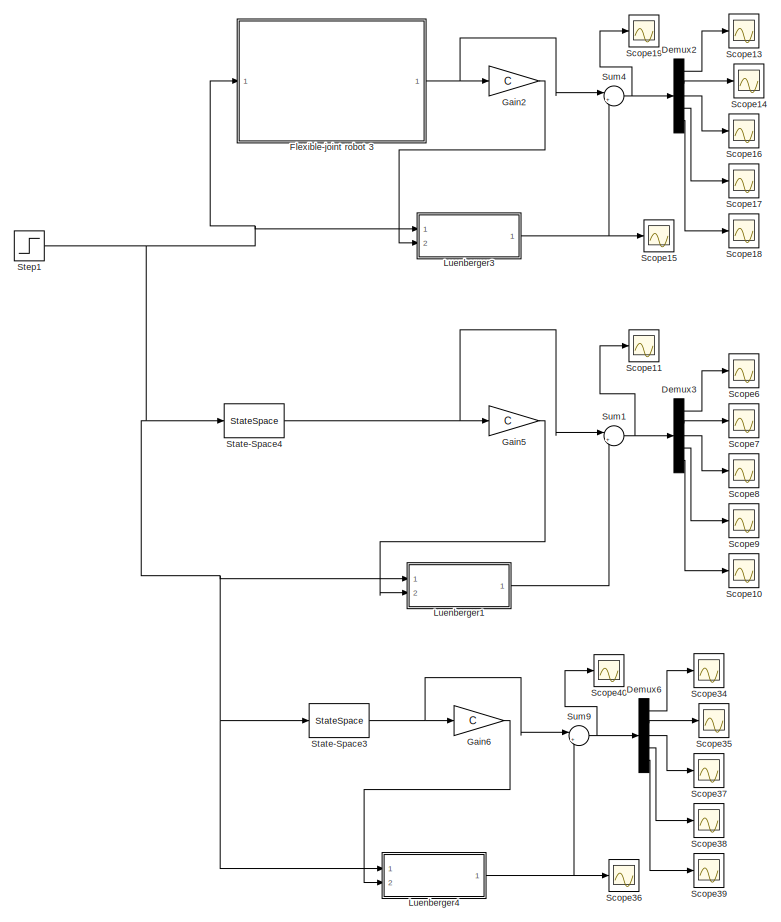
[diagram: root canvas - part 1/3, center side, full height]
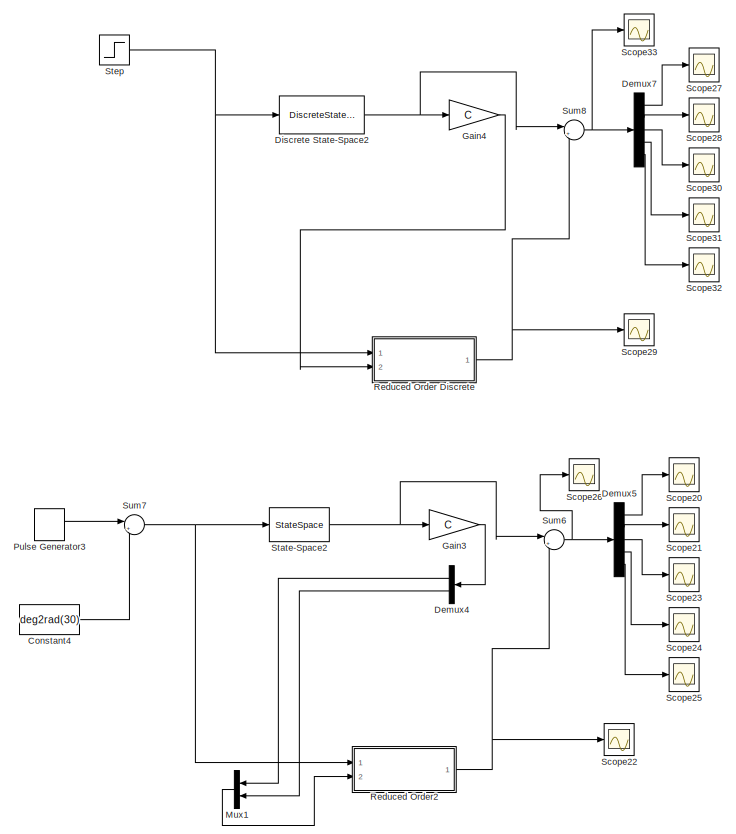
[diagram: root canvas - part 2/3, right side, full height]
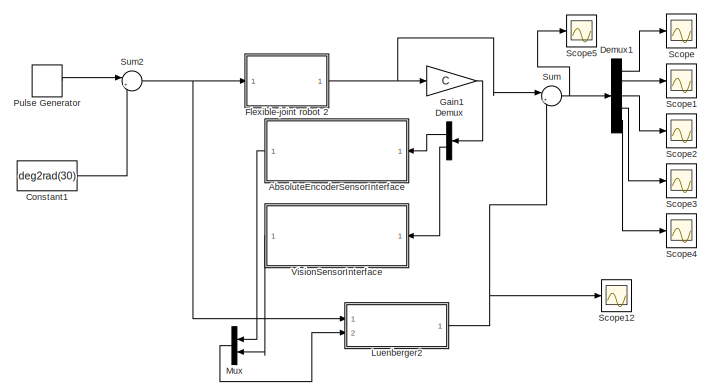
[diagram: root canvas - part 3/3, bottom left region]
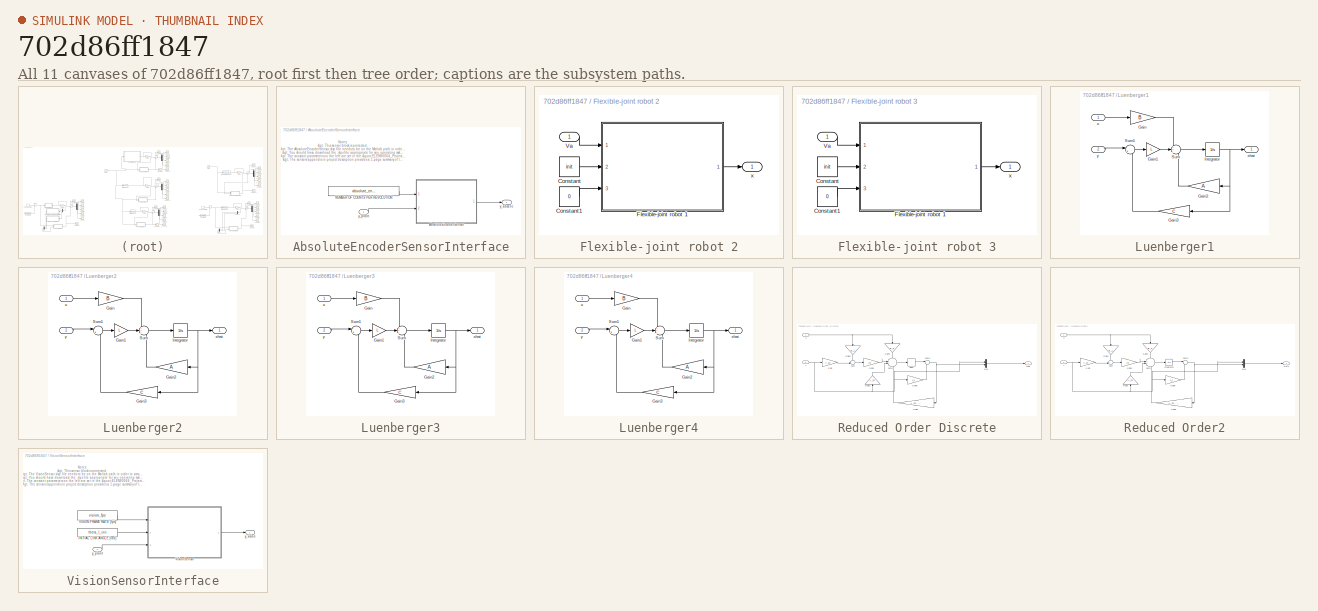
[diagram: thumbnail index - all 11 canvases of the model, root first then tree order]
MODEL slx_702d86ff1847
KIND model
CONFIG AbsTol = auto
CONFIG EnableMultiTasking = off
CONFIG FixedStep = auto
CONFIG MaxStep = auto
CONFIG MinStep = auto
CONFIG RelTol = 1e-3
CONFIG SampleTimeConstraint = Unconstrained
CONFIG SolverName = ode45
CONFIG StartTime = 0.0
CONFIG StopTime = 30
BLOCK [SubSystem] AbsoluteEncoderSensorInterface
  NameLocation = top
  Ports = [1, 1]
  RequestExecContextInheritance = off
  TreatAsAtomicUnit = on
BLOCK [ModelReference] AbsoluteEncoderSensorInterface/AbsoluteEncoderSensor
  CopyOfModelProtected = on
  ModelNameDialog = AbsoluteEncoderSensor.slxp
  ModelReferenceVersion = 1.16
  Ports = [2, 1]
BLOCK [Constant] AbsoluteEncoderSensorInterface/NUMBER OF COUNTS PER REVOLUTION
  Value = absolute_encoder_counts_per_revolution
BLOCK [Outport] AbsoluteEncoderSensorInterface/y_absenc
BLOCK [Inport] AbsoluteEncoderSensorInterface/y_plant
BLOCK [Constant] Constant1
  Value = deg2rad(30)
BLOCK [Constant] Constant4
  Value = deg2rad(30)
BLOCK [Demux] Demux
  NameLocation = top
  Outputs = 2
  Ports = [1, 2]
BLOCK [Demux] Demux1
  Outputs = 5
  Ports = [1, 5]
BLOCK [Demux] Demux2
  Outputs = 5
  Ports = [1, 5]
BLOCK [Demux] Demux3
  Outputs = 5
  Ports = [1, 5]
BLOCK [Demux] Demux4
  NameLocation = top
  Outputs = 2
  Ports = [1, 2]
BLOCK [Demux] Demux5
  Outputs = 5
  Ports = [1, 5]
BLOCK [Demux] Demux6
  Outputs = 5
  Ports = [1, 5]
BLOCK [Demux] Demux7
  Outputs = 5
  Ports = [1, 5]
BLOCK [DiscreteStateSpace] Discrete State-Space2
  A = Dp.a
  B = Dp.b
  C = Dp.c
  D = Dp.d
  SampleTime = T
BLOCK [SubSystem] Flexible-joint robot 2
  Ports = [1, 1]
  RequestExecContextInheritance = off
BLOCK [Constant] Flexible-joint robot 2/Constant
  Value = init
BLOCK [Constant] Flexible-joint robot 2/Constant1
  Value = 0
BLOCK [ModelReference] Flexible-joint robot 2/Flexible-joint robot 1
  CopyOfModelProtected = on
  ModelNameDialog = Flexible_joint_robot_1
  ModelReferenceVersion = 1.65
  Ports = [3, 1]
BLOCK [Inport] Flexible-joint robot 2/Va
BLOCK [Outport] Flexible-joint robot 2/x
BLOCK [SubSystem] Flexible-joint robot 3
  Ports = [1, 1]
  RequestExecContextInheritance = off
BLOCK [Constant] Flexible-joint robot 3/Constant
  Value = init
BLOCK [Constant] Flexible-joint robot 3/Constant1
  Value = 0
BLOCK [ModelReference] Flexible-joint robot 3/Flexible-joint robot 1
  CopyOfModelProtected = on
  ModelNameDialog = Flexible_joint_robot_1
  ModelReferenceVersion = 1.65
  Ports = [3, 1]
BLOCK [Inport] Flexible-joint robot 3/Va
BLOCK [Outport] Flexible-joint robot 3/x
BLOCK [Gain] Gain1
  Gain = C
  Multiplication = Matrix(K*u)
BLOCK [Gain] Gain2
  Gain = C
  Multiplication = Matrix(K*u)
BLOCK [Gain] Gain3
  Gain = C
  Multiplication = Matrix(K*u)
BLOCK [Gain] Gain4
  Gain = C
  Multiplication = Matrix(K*u)
BLOCK [Gain] Gain5
  Gain = C
  Multiplication = Matrix(K*u)
BLOCK [Gain] Gain6
  Gain = C
  Multiplication = Matrix(K*u)
BLOCK [SubSystem] Luenberger1
  NameLocation = top
  Ports = [2, 1]
  RequestExecContextInheritance = off
  TreatAsAtomicUnit = on
BLOCK [Gain] Luenberger1/Gain
  Gain = B
  Multiplication = Matrix(K*u) (u vector)
BLOCK [Gain] Luenberger1/Gain1
  Gain = L
  Multiplication = Matrix(K*u) (u vector)
BLOCK [Gain] Luenberger1/Gain2
  Gain = A
  Multiplication = Matrix(K*u) (u vector)
  NameLocation = top
BLOCK [Gain] Luenberger1/Gain3
  Gain = C
  Multiplication = Matrix(K*u) (u vector)
  NameLocation = top
BLOCK [Integrator] Luenberger1/Integrator
  Ports = [1, 1]
BLOCK [Sum] Luenberger1/Sum
  Inputs = +++
  Ports = [3, 1]
BLOCK [Sum] Luenberger1/Sum1
  Inputs = |+-
  Ports = [2, 1]
BLOCK [Inport] Luenberger1/u
BLOCK [Outport] Luenberger1/xhat
BLOCK [Inport] Luenberger1/y
  Port = 2
BLOCK [SubSystem] Luenberger2
  NameLocation = top
  Ports = [2, 1]
  RequestExecContextInheritance = off
  TreatAsAtomicUnit = on
BLOCK [Gain] Luenberger2/Gain
  Gain = B
  Multiplication = Matrix(K*u) (u vector)
BLOCK [Gain] Luenberger2/Gain1
  Gain = L
  Multiplication = Matrix(K*u) (u vector)
BLOCK [Gain] Luenberger2/Gain2
  Gain = A
  Multiplication = Matrix(K*u) (u vector)
  NameLocation = top
BLOCK [Gain] Luenberger2/Gain3
  Gain = C
  Multiplication = Matrix(K*u) (u vector)
  NameLocation = top
BLOCK [Integrator] Luenberger2/Integrator
  Ports = [1, 1]
BLOCK [Sum] Luenberger2/Sum
  Inputs = +++
  Ports = [3, 1]
BLOCK [Sum] Luenberger2/Sum1
  Inputs = |+-
  Ports = [2, 1]
BLOCK [Inport] Luenberger2/u
BLOCK [Outport] Luenberger2/xhat
BLOCK [Inport] Luenberger2/y
  Port = 2
BLOCK [SubSystem] Luenberger3
  NameLocation = top
  Ports = [2, 1]
  RequestExecContextInheritance = off
  TreatAsAtomicUnit = on
BLOCK [Gain] Luenberger3/Gain
  Gain = B
  Multiplication = Matrix(K*u) (u vector)
BLOCK [Gain] Luenberger3/Gain1
  Gain = L
  Multiplication = Matrix(K*u) (u vector)
BLOCK [Gain] Luenberger3/Gain2
  Gain = A
  Multiplication = Matrix(K*u) (u vector)
  NameLocation = top
BLOCK [Gain] Luenberger3/Gain3
  Gain = C
  Multiplication = Matrix(K*u) (u vector)
  NameLocation = top
BLOCK [Integrator] Luenberger3/Integrator
  Ports = [1, 1]
BLOCK [Sum] Luenberger3/Sum
  Inputs = +++
  Ports = [3, 1]
BLOCK [Sum] Luenberger3/Sum1
  Inputs = |+-
  Ports = [2, 1]
BLOCK [Inport] Luenberger3/u
BLOCK [Outport] Luenberger3/xhat
BLOCK [Inport] Luenberger3/y
  Port = 2
BLOCK [SubSystem] Luenberger4
  NameLocation = top
  Ports = [2, 1]
  RequestExecContextInheritance = off
  TreatAsAtomicUnit = on
BLOCK [Gain] Luenberger4/Gain
  Gain = B
  Multiplication = Matrix(K*u) (u vector)
BLOCK [Gain] Luenberger4/Gain1
  Gain = L
  Multiplication = Matrix(K*u) (u vector)
BLOCK [Gain] Luenberger4/Gain2
  Gain = A
  Multiplication = Matrix(K*u) (u vector)
  NameLocation = top
BLOCK [Gain] Luenberger4/Gain3
  Gain = C
  Multiplication = Matrix(K*u) (u vector)
  NameLocation = top
BLOCK [Integrator] Luenberger4/Integrator
  Ports = [1, 1]
BLOCK [Sum] Luenberger4/Sum
  Inputs = +++
  Ports = [3, 1]
BLOCK [Sum] Luenberger4/Sum1
  Inputs = |+-
  Ports = [2, 1]
BLOCK [Inport] Luenberger4/u
BLOCK [Outport] Luenberger4/xhat
BLOCK [Inport] Luenberger4/y
  Port = 2
BLOCK [Mux] Mux
  DisplayOption = bar
  Inputs = 2
  NameLocation = top
  Ports = [2, 1]
BLOCK [Mux] Mux1
  DisplayOption = bar
  Inputs = 2
  NameLocation = top
  Ports = [2, 1]
BLOCK [DiscretePulseGenerator] Pulse Generator
  Amplitude = deg2rad(30)
  Period = 10
  Ports = [0, 1]
  PulseType = Time based
  PulseWidth = 50
BLOCK [DiscretePulseGenerator] Pulse Generator3
  Amplitude = deg2rad(30)
  Period = 10
  Ports = [0, 1]
  PulseType = Time based
  PulseWidth = 50
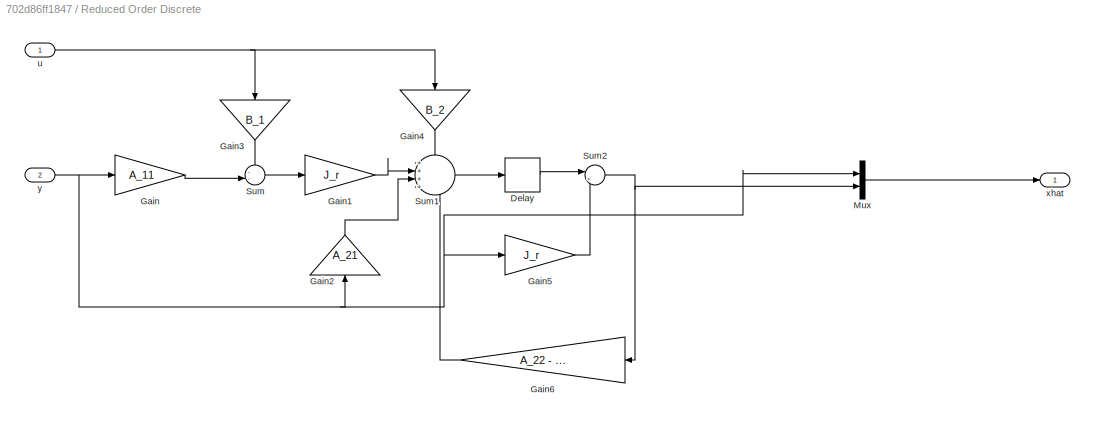
BLOCK [SubSystem] Reduced Order Discrete
  NameLocation = top
  Ports = [2, 1]
  RequestExecContextInheritance = off
  TreatAsAtomicUnit = on
BLOCK [Delay] Reduced Order Discrete/Delay
  InputPortMap = u0
  Ports = [1, 1]
BLOCK [Gain] Reduced Order Discrete/Gain
  Gain = A_11
  Multiplication = Matrix(K*u) (u vector)
BLOCK [Gain] Reduced Order Discrete/Gain1
  Gain = J_r
  Multiplication = Matrix(K*u) (u vector)
BLOCK [Gain] Reduced Order Discrete/Gain2
  Gain = A_21
  Multiplication = Matrix(K*u) (u vector)
  NameLocation = right
BLOCK [Gain] Reduced Order Discrete/Gain3
  Gain = B_1
  Multiplication = Matrix(K*u) (u vector)
  NameLocation = left
BLOCK [Gain] Reduced Order Discrete/Gain4
  Gain = B_2
  Multiplication = Matrix(K*u) (u vector)
  NameLocation = left
BLOCK [Gain] Reduced Order Discrete/Gain5
  Gain = J_r
  Multiplication = Matrix(K*u) (u vector)
BLOCK [Gain] Reduced Order Discrete/Gain6
  Gain = A_22 - J_r*A_12
  Multiplication = Matrix(K*u) (u vector)
  NameLocation = top
BLOCK [Mux] Reduced Order Discrete/Mux
  DisplayOption = bar
  Inputs = 2
  Ports = [2, 1]
BLOCK [Sum] Reduced Order Discrete/Sum
  Inputs = --|
  Ports = [2, 1]
BLOCK [Sum] Reduced Order Discrete/Sum1
  Inputs = ++++
  Ports = [4, 1]
BLOCK [Sum] Reduced Order Discrete/Sum2
  Inputs = |++
  Ports = [2, 1]
BLOCK [Inport] Reduced Order Discrete/u
BLOCK [Outport] Reduced Order Discrete/xhat
BLOCK [Inport] Reduced Order Discrete/y
  Port = 2
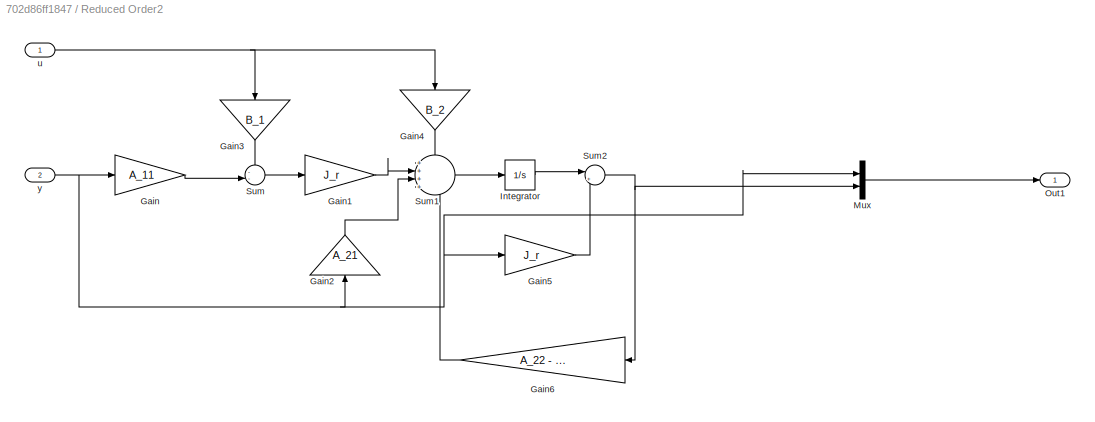
BLOCK [SubSystem] Reduced Order2
  NameLocation = top
  Ports = [2, 1]
  RequestExecContextInheritance = off
  TreatAsAtomicUnit = on
BLOCK [Gain] Reduced Order2/Gain
  Gain = A_11
  Multiplication = Matrix(K*u) (u vector)
BLOCK [Gain] Reduced Order2/Gain1
  Gain = J_r
  Multiplication = Matrix(K*u) (u vector)
BLOCK [Gain] Reduced Order2/Gain2
  Gain = A_21
  Multiplication = Matrix(K*u) (u vector)
  NameLocation = right
BLOCK [Gain] Reduced Order2/Gain3
  Gain = B_1
  Multiplication = Matrix(K*u) (u vector)
  NameLocation = left
BLOCK [Gain] Reduced Order2/Gain4
  Gain = B_2
  Multiplication = Matrix(K*u) (u vector)
  NameLocation = left
BLOCK [Gain] Reduced Order2/Gain5
  Gain = J_r
  Multiplication = Matrix(K*u) (u vector)
BLOCK [Gain] Reduced Order2/Gain6
  Gain = A_22 - J_r*A_12
  Multiplication = Matrix(K*u) (u vector)
  NameLocation = top
BLOCK [Integrator] Reduced Order2/Integrator
  Ports = [1, 1]
BLOCK [Mux] Reduced Order2/Mux
  DisplayOption = bar
  Inputs = 2
  Ports = [2, 1]
BLOCK [Outport] Reduced Order2/Out1
BLOCK [Sum] Reduced Order2/Sum
  Inputs = --|
  Ports = [2, 1]
BLOCK [Sum] Reduced Order2/Sum1
  Inputs = ++++
  Ports = [4, 1]
BLOCK [Sum] Reduced Order2/Sum2
  Inputs = |++
  Ports = [2, 1]
BLOCK [Inport] Reduced Order2/u
BLOCK [Inport] Reduced Order2/y
  Port = 2
BLOCK [Scope] Scope
  Floating = off
  NumInputPorts = 1
  Ports = [1]
  ScopeSpecificationString = Simulink.scopes.TimeScopeBlockCfg('CurrentConfiguration', extmgr.ConfigurationSet(extmgr.Configuration('Core','General UI',true),extmgr.Configuration('Core','Source UI',true),extmgr.Configuration('Sources','WiredSimulink',true),extmgr.Configuration('Visuals','Time Domain',true,'SerializedDisplays',{struct('MinYLimReal','-0.06143','MaxYLimReal','0.05922','YLabelReal','','MinYLimMag','0.00000','MaxY...<+1400ch>
BLOCK [Scope] Scope1
  Floating = off
  NumInputPorts = 1
  Ports = [1]
  ScopeSpecificationString = Simulink.scopes.TimeScopeBlockCfg('CurrentConfiguration', extmgr.ConfigurationSet(extmgr.Configuration('Core','General UI',true),extmgr.Configuration('Core','Source UI',true),extmgr.Configuration('Sources','WiredSimulink',true,'DataLoggingVariableName','ScopeData1'),extmgr.Configuration('Visuals','Time Domain',true,'SerializedDisplays',{struct('MinYLimReal','-183.88766','MaxYLimReal','148.14918','...<+1453ch>
BLOCK [Scope] Scope10
  Floating = off
  NumInputPorts = 1
  Ports = [1]
  ScopeSpecificationString = Simulink.scopes.TimeScopeBlockCfg('CurrentConfiguration', extmgr.ConfigurationSet(extmgr.Configuration('Core','General UI',true),extmgr.Configuration('Core','Source UI',true),extmgr.Configuration('Sources','WiredSimulink',true,'DataLoggingVariableName','ScopeData1'),extmgr.Configuration('Visuals','Time Domain',true,'SerializedDisplays',{struct('MinYLimReal','-0.00005','MaxYLimReal','0.00044','YLab...<+1439ch>
BLOCK [Scope] Scope11
  Floating = off
  NumInputPorts = 1
  Ports = [1]
  ScopeSpecificationString = Simulink.scopes.TimeScopeBlockCfg('CurrentConfiguration', extmgr.ConfigurationSet(extmgr.Configuration('Core','General UI',true),extmgr.Configuration('Core','Source UI',true),extmgr.Configuration('Sources','WiredSimulink',true,'DataLoggingVariableName','ScopeData8'),extmgr.Configuration('Visuals','Time Domain',true,'SerializedDisplays',{struct('MinYLimReal','-0.00954','MaxYLimReal','0.07203','YLab...<+1473ch>
BLOCK [Scope] Scope12
  Floating = off
  NumInputPorts = 1
  Ports = [1]
  ScopeSpecificationString = Simulink.scopes.TimeScopeBlockCfg('CurrentConfiguration', extmgr.ConfigurationSet(extmgr.Configuration('Core','General UI',true),extmgr.Configuration('Core','Source UI',true),extmgr.Configuration('Sources','WiredSimulink',true,'DataLoggingVariableName','ScopeData7'),extmgr.Configuration('Visuals','Time Domain',true,'SerializedDisplays',{struct('MinYLimReal','-618.01754','MaxYLimReal','595.91483','...<+1522ch>
BLOCK [Scope] Scope13
  Floating = off
  NumInputPorts = 1
  Ports = [1]
  ScopeSpecificationString = Simulink.scopes.TimeScopeBlockCfg('CurrentConfiguration', extmgr.ConfigurationSet(extmgr.Configuration('Core','General UI',true),extmgr.Configuration('Core','Source UI',true),extmgr.Configuration('Sources','WiredSimulink',true,'DataLoggingVariableName','ScopeData1'),extmgr.Configuration('Visuals','Time Domain',true,'SerializedDisplays',{struct('MinYLimReal','-1.00000','MaxYLimReal','1.00000','YLab...<+1439ch>
BLOCK [Scope] Scope14
  Floating = off
  NumInputPorts = 1
  Ports = [1]
  ScopeSpecificationString = Simulink.scopes.TimeScopeBlockCfg('CurrentConfiguration', extmgr.ConfigurationSet(extmgr.Configuration('Core','General UI',true),extmgr.Configuration('Core','Source UI',true),extmgr.Configuration('Sources','WiredSimulink',true,'DataLoggingVariableName','ScopeData2'),extmgr.Configuration('Visuals','Time Domain',true,'SerializedDisplays',{struct('MinYLimReal','-0.0000000000000023','MaxYLimReal','0.0...<+1527ch>
BLOCK [Scope] Scope15
  Floating = off
  NumInputPorts = 1
  Ports = [1]
  ScopeSpecificationString = Simulink.scopes.TimeScopeBlockCfg('CurrentConfiguration', extmgr.ConfigurationSet(extmgr.Configuration('Core','General UI',true),extmgr.Configuration('Core','Source UI',true),extmgr.Configuration('Sources','WiredSimulink',true,'DataLoggingVariableName','ScopeData3'),extmgr.Configuration('Visuals','Time Domain',true,'SerializedDisplays',{struct('MinYLimReal','-6.15621','MaxYLimReal','6.84793','YLab...<+1508ch>
BLOCK [Scope] Scope16
  Floating = off
  NumInputPorts = 1
  Ports = [1]
  ScopeSpecificationString = Simulink.scopes.TimeScopeBlockCfg('CurrentConfiguration', extmgr.ConfigurationSet(extmgr.Configuration('Core','General UI',true),extmgr.Configuration('Core','Source UI',true),extmgr.Configuration('Sources','WiredSimulink',true,'DataLoggingVariableName','ScopeData4'),extmgr.Configuration('Visuals','Time Domain',true,'SerializedDisplays',{struct('MinYLimReal','-1.00000','MaxYLimReal','1.00000','YLab...<+1439ch>
BLOCK [Scope] Scope17
  Floating = off
  NumInputPorts = 1
  Ports = [1]
  ScopeSpecificationString = Simulink.scopes.TimeScopeBlockCfg('CurrentConfiguration', extmgr.ConfigurationSet(extmgr.Configuration('Core','General UI',true),extmgr.Configuration('Core','Source UI',true),extmgr.Configuration('Sources','WiredSimulink',true,'DataLoggingVariableName','ScopeData5'),extmgr.Configuration('Visuals','Time Domain',true,'SerializedDisplays',{struct('MinYLimReal','-0.0000000000025','MaxYLimReal','0.0000...<+1503ch>
BLOCK [Scope] Scope18
  Floating = off
  NumInputPorts = 1
  Ports = [1]
  ScopeSpecificationString = Simulink.scopes.TimeScopeBlockCfg('CurrentConfiguration', extmgr.ConfigurationSet(extmgr.Configuration('Core','General UI',true),extmgr.Configuration('Core','Source UI',true),extmgr.Configuration('Sources','WiredSimulink',true,'DataLoggingVariableName','ScopeData6'),extmgr.Configuration('Visuals','Time Domain',true,'SerializedDisplays',{struct('MinYLimReal','-0.000000000000025','MaxYLimReal','0.00...<+1519ch>
BLOCK [Scope] Scope19
  Floating = off
  NumInputPorts = 1
  Ports = [1]
  ScopeSpecificationString = Simulink.scopes.TimeScopeBlockCfg('CurrentConfiguration', extmgr.ConfigurationSet(extmgr.Configuration('Core','General UI',true),extmgr.Configuration('Core','Source UI',true),extmgr.Configuration('Sources','WiredSimulink',true,'DataLoggingVariableName','ScopeData7'),extmgr.Configuration('Visuals','Time Domain',true,'SerializedDisplays',{struct('MinYLimReal','-1.00000','MaxYLimReal','1.00000','YLab...<+1474ch>
BLOCK [Scope] Scope2
  Floating = off
  NumInputPorts = 1
  Ports = [1]
  ScopeSpecificationString = Simulink.scopes.TimeScopeBlockCfg('CurrentConfiguration', extmgr.ConfigurationSet(extmgr.Configuration('Core','General UI',true),extmgr.Configuration('Core','Source UI',true),extmgr.Configuration('Sources','WiredSimulink',true,'DataLoggingVariableName','ScopeData2'),extmgr.Configuration('Visuals','Time Domain',true,'SerializedDisplays',{struct('MinYLimReal','-104.4737','MaxYLimReal','61.32964','YL...<+1447ch>
BLOCK [Scope] Scope20
  Floating = off
  NumInputPorts = 1
  Ports = [1]
  ScopeSpecificationString = Simulink.scopes.TimeScopeBlockCfg('CurrentConfiguration', extmgr.ConfigurationSet(extmgr.Configuration('Core','General UI',true),extmgr.Configuration('Core','Source UI',true),extmgr.Configuration('Sources','WiredSimulink',true,'DataLoggingVariableName','ScopeData1'),extmgr.Configuration('Visuals','Time Domain',true,'SerializedDisplays',{struct('MinYLimReal','-0.06143','MaxYLimReal','0.05922','YLab...<+1439ch>
BLOCK [Scope] Scope21
  Floating = off
  NumInputPorts = 1
  Ports = [1]
  ScopeSpecificationString = Simulink.scopes.TimeScopeBlockCfg('CurrentConfiguration', extmgr.ConfigurationSet(extmgr.Configuration('Core','General UI',true),extmgr.Configuration('Core','Source UI',true),extmgr.Configuration('Sources','WiredSimulink',true,'DataLoggingVariableName','ScopeData2'),extmgr.Configuration('Visuals','Time Domain',true,'SerializedDisplays',{struct('MinYLimReal','-183.88766','MaxYLimReal','148.14918','...<+1453ch>
BLOCK [Scope] Scope22
  Floating = off
  NumInputPorts = 1
  Ports = [1]
  ScopeSpecificationString = Simulink.scopes.TimeScopeBlockCfg('CurrentConfiguration', extmgr.ConfigurationSet(extmgr.Configuration('Core','General UI',true),extmgr.Configuration('Core','Source UI',true),extmgr.Configuration('Sources','WiredSimulink',true,'DataLoggingVariableName','ScopeData3'),extmgr.Configuration('Visuals','Time Domain',true,'SerializedDisplays',{struct('MinYLimReal','-97764.31171','MaxYLimReal','118351.636...<+1557ch>
BLOCK [Scope] Scope23
  Floating = off
  NumInputPorts = 1
  Ports = [1]
  ScopeSpecificationString = Simulink.scopes.TimeScopeBlockCfg('CurrentConfiguration', extmgr.ConfigurationSet(extmgr.Configuration('Core','General UI',true),extmgr.Configuration('Core','Source UI',true),extmgr.Configuration('Sources','WiredSimulink',true,'DataLoggingVariableName','ScopeData4'),extmgr.Configuration('Visuals','Time Domain',true,'SerializedDisplays',{struct('MinYLimReal','-70.30615','MaxYLimReal','41.35111','YL...<+1445ch>
BLOCK [Scope] Scope24
  Floating = off
  NumInputPorts = 1
  Ports = [1]
  ScopeSpecificationString = Simulink.scopes.TimeScopeBlockCfg('CurrentConfiguration', extmgr.ConfigurationSet(extmgr.Configuration('Core','General UI',true),extmgr.Configuration('Core','Source UI',true),extmgr.Configuration('Sources','WiredSimulink',true,'DataLoggingVariableName','ScopeData5'),extmgr.Configuration('Visuals','Time Domain',true,'SerializedDisplays',{struct('MinYLimReal','-181330.99853','MaxYLimReal','150408.49...<+1477ch>
BLOCK [Scope] Scope25
  Floating = off
  NumInputPorts = 1
  Ports = [1]
  ScopeSpecificationString = Simulink.scopes.TimeScopeBlockCfg('CurrentConfiguration', extmgr.ConfigurationSet(extmgr.Configuration('Core','General UI',true),extmgr.Configuration('Core','Source UI',true),extmgr.Configuration('Sources','WiredSimulink',true,'DataLoggingVariableName','ScopeData6'),extmgr.Configuration('Visuals','Time Domain',true,'SerializedDisplays',{struct('MinYLimReal','-1843.54498','MaxYLimReal','2239.72718'...<+1461ch>
BLOCK [Scope] Scope26
  Floating = off
  NumInputPorts = 1
  Ports = [1]
  ScopeSpecificationString = Simulink.scopes.TimeScopeBlockCfg('CurrentConfiguration', extmgr.ConfigurationSet(extmgr.Configuration('Core','General UI',true),extmgr.Configuration('Core','Source UI',true),extmgr.Configuration('Sources','WiredSimulink',true,'DataLoggingVariableName','ScopeData7'),extmgr.Configuration('Visuals','Time Domain',true,'SerializedDisplays',{struct('MinYLimReal','-0.0000000028','MaxYLimReal','0.0000000...<+1513ch>
BLOCK [Scope] Scope27
  Floating = off
  NumInputPorts = 1
  Ports = [1]
  ScopeSpecificationString = Simulink.scopes.TimeScopeBlockCfg('CurrentConfiguration', extmgr.ConfigurationSet(extmgr.Configuration('Core','General UI',true),extmgr.Configuration('Core','Source UI',true),extmgr.Configuration('Sources','WiredSimulink',true,'DataLoggingVariableName','ScopeData8'),extmgr.Configuration('Visuals','Time Domain',true,'SerializedDisplays',{struct('MinYLimReal','-1.00000','MaxYLimReal','1.00000','YLab...<+1442ch>
BLOCK [Scope] Scope28
  Floating = off
  NumInputPorts = 1
  Ports = [1]
  ScopeSpecificationString = Simulink.scopes.TimeScopeBlockCfg('CurrentConfiguration', extmgr.ConfigurationSet(extmgr.Configuration('Core','General UI',true),extmgr.Configuration('Core','Source UI',true),extmgr.Configuration('Sources','WiredSimulink',true,'DataLoggingVariableName','ScopeData9'),extmgr.Configuration('Visuals','Time Domain',true,'SerializedDisplays',{struct('MinYLimReal','-1.00000','MaxYLimReal','1.00000','YLab...<+1439ch>
BLOCK [Scope] Scope29
  Floating = off
  NumInputPorts = 1
  Ports = [1]
  ScopeSpecificationString = Simulink.scopes.TimeScopeBlockCfg('CurrentConfiguration', extmgr.ConfigurationSet(extmgr.Configuration('Core','General UI',true),extmgr.Configuration('Core','Source UI',true),extmgr.Configuration('Sources','WiredSimulink',true,'DataLoggingVariableName','ScopeData10'),extmgr.Configuration('Visuals','Time Domain',true,'SerializedDisplays',{struct('MinYLimReal','-97764.31171','MaxYLimReal','118351.63...<+1558ch>
BLOCK [Scope] Scope3
  Floating = off
  NumInputPorts = 1
  Ports = [1]
  ScopeSpecificationString = Simulink.scopes.TimeScopeBlockCfg('CurrentConfiguration', extmgr.ConfigurationSet(extmgr.Configuration('Core','General UI',true),extmgr.Configuration('Core','Source UI',true),extmgr.Configuration('Sources','WiredSimulink',true,'DataLoggingVariableName','ScopeData3'),extmgr.Configuration('Visuals','Time Domain',true,'SerializedDisplays',{struct('MinYLimReal','-2542.86051','MaxYLimReal','2543.02396'...<+1461ch>
BLOCK [Scope] Scope30
  Floating = off
  NumInputPorts = 1
  Ports = [1]
  ScopeSpecificationString = Simulink.scopes.TimeScopeBlockCfg('CurrentConfiguration', extmgr.ConfigurationSet(extmgr.Configuration('Core','General UI',true),extmgr.Configuration('Core','Source UI',true),extmgr.Configuration('Sources','WiredSimulink',true,'DataLoggingVariableName','ScopeData11'),extmgr.Configuration('Visuals','Time Domain',true,'SerializedDisplays',{struct('MinYLimReal','-0.94273','MaxYLimReal','0.10475','YLa...<+1440ch>
BLOCK [Scope] Scope31
  Floating = off
  NumInputPorts = 1
  Ports = [1]
  ScopeSpecificationString = Simulink.scopes.TimeScopeBlockCfg('CurrentConfiguration', extmgr.ConfigurationSet(extmgr.Configuration('Core','General UI',true),extmgr.Configuration('Core','Source UI',true),extmgr.Configuration('Sources','WiredSimulink',true,'DataLoggingVariableName','ScopeData12'),extmgr.Configuration('Visuals','Time Domain',true,'SerializedDisplays',{struct('MinYLimReal','-0.00681','MaxYLimReal','0.06131','YLa...<+1440ch>
BLOCK [Scope] Scope32
  Floating = off
  NumInputPorts = 1
  Ports = [1]
  ScopeSpecificationString = Simulink.scopes.TimeScopeBlockCfg('CurrentConfiguration', extmgr.ConfigurationSet(extmgr.Configuration('Core','General UI',true),extmgr.Configuration('Core','Source UI',true),extmgr.Configuration('Sources','WiredSimulink',true,'DataLoggingVariableName','ScopeData13'),extmgr.Configuration('Visuals','Time Domain',true,'SerializedDisplays',{struct('MinYLimReal','-0.23598','MaxYLimReal','0.02888','YLa...<+1440ch>
BLOCK [Scope] Scope33
  Floating = off
  NumInputPorts = 1
  Ports = [1]
  ScopeSpecificationString = Simulink.scopes.TimeScopeBlockCfg('CurrentConfiguration', extmgr.ConfigurationSet(extmgr.Configuration('Core','General UI',true),extmgr.Configuration('Core','Source UI',true),extmgr.Configuration('Sources','WiredSimulink',true,'DataLoggingVariableName','ScopeData14'),extmgr.Configuration('Visuals','Time Domain',true,'SerializedDisplays',{struct('MinYLimReal','-0.94693','MaxYLimReal','0.16452','YLa...<+1477ch>
BLOCK [Scope] Scope34
  Floating = off
  NumInputPorts = 1
  Ports = [1]
  ScopeSpecificationString = Simulink.scopes.TimeScopeBlockCfg('CurrentConfiguration', extmgr.ConfigurationSet(extmgr.Configuration('Core','General UI',true),extmgr.Configuration('Core','Source UI',true),extmgr.Configuration('Sources','WiredSimulink',true,'DataLoggingVariableName','ScopeData1'),extmgr.Configuration('Visuals','Time Domain',true,'SerializedDisplays',{struct('MinYLimReal','-1.00000','MaxYLimReal','1.00000','YLab...<+1439ch>
BLOCK [Scope] Scope35
  Floating = off
  NumInputPorts = 1
  Ports = [1]
  ScopeSpecificationString = Simulink.scopes.TimeScopeBlockCfg('CurrentConfiguration', extmgr.ConfigurationSet(extmgr.Configuration('Core','General UI',true),extmgr.Configuration('Core','Source UI',true),extmgr.Configuration('Sources','WiredSimulink',true,'DataLoggingVariableName','ScopeData2'),extmgr.Configuration('Visuals','Time Domain',true,'SerializedDisplays',{struct('MinYLimReal','-0.0000000000000023','MaxYLimReal','0.0...<+1527ch>
BLOCK [Scope] Scope36
  Floating = off
  NumInputPorts = 1
  Ports = [1]
  ScopeSpecificationString = Simulink.scopes.TimeScopeBlockCfg('CurrentConfiguration', extmgr.ConfigurationSet(extmgr.Configuration('Core','General UI',true),extmgr.Configuration('Core','Source UI',true),extmgr.Configuration('Sources','WiredSimulink',true,'DataLoggingVariableName','ScopeData3'),extmgr.Configuration('Visuals','Time Domain',true,'SerializedDisplays',{struct('MinYLimReal','-6.15621','MaxYLimReal','6.84793','YLab...<+1508ch>
BLOCK [Scope] Scope37
  Floating = off
  NumInputPorts = 1
  Ports = [1]
  ScopeSpecificationString = Simulink.scopes.TimeScopeBlockCfg('CurrentConfiguration', extmgr.ConfigurationSet(extmgr.Configuration('Core','General UI',true),extmgr.Configuration('Core','Source UI',true),extmgr.Configuration('Sources','WiredSimulink',true,'DataLoggingVariableName','ScopeData4'),extmgr.Configuration('Visuals','Time Domain',true,'SerializedDisplays',{struct('MinYLimReal','-1.00000','MaxYLimReal','1.00000','YLab...<+1439ch>
BLOCK [Scope] Scope38
  Floating = off
  NumInputPorts = 1
  Ports = [1]
  ScopeSpecificationString = Simulink.scopes.TimeScopeBlockCfg('CurrentConfiguration', extmgr.ConfigurationSet(extmgr.Configuration('Core','General UI',true),extmgr.Configuration('Core','Source UI',true),extmgr.Configuration('Sources','WiredSimulink',true,'DataLoggingVariableName','ScopeData5'),extmgr.Configuration('Visuals','Time Domain',true,'SerializedDisplays',{struct('MinYLimReal','-0.0000000000025','MaxYLimReal','0.0000...<+1503ch>
BLOCK [Scope] Scope39
  Floating = off
  NumInputPorts = 1
  Ports = [1]
  ScopeSpecificationString = Simulink.scopes.TimeScopeBlockCfg('CurrentConfiguration', extmgr.ConfigurationSet(extmgr.Configuration('Core','General UI',true),extmgr.Configuration('Core','Source UI',true),extmgr.Configuration('Sources','WiredSimulink',true,'DataLoggingVariableName','ScopeData6'),extmgr.Configuration('Visuals','Time Domain',true,'SerializedDisplays',{struct('MinYLimReal','-0.000000000000025','MaxYLimReal','0.00...<+1519ch>
BLOCK [Scope] Scope4
  Floating = off
  NumInputPorts = 1
  Ports = [1]
  ScopeSpecificationString = Simulink.scopes.TimeScopeBlockCfg('CurrentConfiguration', extmgr.ConfigurationSet(extmgr.Configuration('Core','General UI',true),extmgr.Configuration('Core','Source UI',true),extmgr.Configuration('Sources','WiredSimulink',true,'DataLoggingVariableName','ScopeData4'),extmgr.Configuration('Visuals','Time Domain',true,'SerializedDisplays',{struct('MinYLimReal','-30.89237','MaxYLimReal','30.88978','YL...<+1446ch>
BLOCK [Scope] Scope40
  Floating = off
  NumInputPorts = 1
  Ports = [1]
  ScopeSpecificationString = Simulink.scopes.TimeScopeBlockCfg('CurrentConfiguration', extmgr.ConfigurationSet(extmgr.Configuration('Core','General UI',true),extmgr.Configuration('Core','Source UI',true),extmgr.Configuration('Sources','WiredSimulink',true,'DataLoggingVariableName','ScopeData7'),extmgr.Configuration('Visuals','Time Domain',true,'SerializedDisplays',{struct('MinYLimReal','-1.00000','MaxYLimReal','1.00000','YLab...<+1477ch>
BLOCK [Scope] Scope5
  Floating = off
  NumInputPorts = 1
  Ports = [1]
  ScopeSpecificationString = Simulink.scopes.TimeScopeBlockCfg('CurrentConfiguration', extmgr.ConfigurationSet(extmgr.Configuration('Core','General UI',true),extmgr.Configuration('Core','Source UI',true),extmgr.Configuration('Sources','WiredSimulink',true,'DataLoggingVariableName','ScopeData1'),extmgr.Configuration('Visuals','Time Domain',true,'SerializedDisplays',{struct('MinYLimReal','-390.42156','MaxYLimReal','224.8222','Y...<+1480ch>
BLOCK [Scope] Scope6
  Floating = off
  NumInputPorts = 1
  Ports = [1]
  ScopeSpecificationString = Simulink.scopes.TimeScopeBlockCfg('CurrentConfiguration', extmgr.ConfigurationSet(extmgr.Configuration('Core','General UI',true),extmgr.Configuration('Core','Source UI',true),extmgr.Configuration('Sources','WiredSimulink',true,'DataLoggingVariableName','ScopeData3'),extmgr.Configuration('Visuals','Time Domain',true,'SerializedDisplays',{struct('MinYLimReal','-0.37386','MaxYLimReal','2.57346','YLab...<+1439ch>
BLOCK [Scope] Scope7
  Floating = off
  NumInputPorts = 1
  Ports = [1]
  ScopeSpecificationString = Simulink.scopes.TimeScopeBlockCfg('CurrentConfiguration', extmgr.ConfigurationSet(extmgr.Configuration('Core','General UI',true),extmgr.Configuration('Core','Source UI',true),extmgr.Configuration('Sources','WiredSimulink',true,'DataLoggingVariableName','ScopeData4'),extmgr.Configuration('Visuals','Time Domain',true,'SerializedDisplays',{struct('MinYLimReal','-0.032','MaxYLimReal','0.06496','YLabel...<+1438ch>
BLOCK [Scope] Scope8
  Floating = off
  NumInputPorts = 1
  Ports = [1]
  ScopeSpecificationString = Simulink.scopes.TimeScopeBlockCfg('CurrentConfiguration', extmgr.ConfigurationSet(extmgr.Configuration('Core','General UI',true),extmgr.Configuration('Core','Source UI',true),extmgr.Configuration('Sources','WiredSimulink',true,'DataLoggingVariableName','ScopeData5'),extmgr.Configuration('Visuals','Time Domain',true,'SerializedDisplays',{struct('MinYLimReal','-4.92886','MaxYLimReal','43.39107','YLa...<+1443ch>
BLOCK [Scope] Scope9
  Floating = off
  NumInputPorts = 1
  Ports = [1]
  ScopeSpecificationString = Simulink.scopes.TimeScopeBlockCfg('CurrentConfiguration', extmgr.ConfigurationSet(extmgr.Configuration('Core','General UI',true),extmgr.Configuration('Core','Source UI',true),extmgr.Configuration('Sources','WiredSimulink',true,'DataLoggingVariableName','ScopeData6'),extmgr.Configuration('Visuals','Time Domain',true,'SerializedDisplays',{struct('MinYLimReal','-0.01203','MaxYLimReal','0.0964','YLabe...<+1435ch>
BLOCK [StateSpace] State-Space2
  A = A
  B = B
  C = eye(5)
  D = zeros(5,1)
  InitialCondition = 0
  Ports = [1, 1]
BLOCK [StateSpace] State-Space3
  A = A
  B = B
  C = eye(5)
  D = zeros(5,1)
  InitialCondition = 0
  Ports = [1, 1]
BLOCK [StateSpace] State-Space4
  A = A
  B = B
  C = eye(5)
  D = zeros(5,1)
  InitialCondition = 0
  Ports = [1, 1]
BLOCK [Step] Step
  SampleTime = 0
  Time = deg2rad(60)
BLOCK [Step] Step1
  SampleTime = 0
  Time = deg2rad(60)
BLOCK [Sum] Sum
  Inputs = |+-
  Ports = [2, 1]
BLOCK [Sum] Sum1
  Inputs = |+-
  Ports = [2, 1]
BLOCK [Sum] Sum2
  Inputs = |++
  Ports = [2, 1]
BLOCK [Sum] Sum4
  Inputs = |+-
  Ports = [2, 1]
BLOCK [Sum] Sum6
  Inputs = |+-
  Ports = [2, 1]
BLOCK [Sum] Sum7
  Inputs = |++
  Ports = [2, 1]
BLOCK [Sum] Sum8
  Inputs = |+-
  Ports = [2, 1]
BLOCK [Sum] Sum9
  Inputs = |+-
  Ports = [2, 1]
BLOCK [SubSystem] VisionSensorInterface
  NameLocation = top
  Ports = [1, 1]
  RequestExecContextInheritance = off
  TreatAsAtomicUnit = on
BLOCK [Constant] VisionSensorInterface/INITIAL LINK ANGLE [rad]
  Value = theta_l_init
BLOCK [Constant] VisionSensorInterface/VISION FRAME RATE [fps]
  Value = vision_fps
BLOCK [ModelReference] VisionSensorInterface/VisionSensor
  CopyOfModelProtected = on
  ModelNameDialog = VisionSensor.slxp
  ModelReferenceVersion = 1.19
  Ports = [3, 1]
BLOCK [Inport] VisionSensorInterface/y_plant
BLOCK [Outport] VisionSensorInterface/y_vision
ANNOTATION AbsoluteEncoderSensorInterface: Notes: > This sensor block is protected. > The AbsoluteEncoderSensor.slxp file needs to be on the Matlab path in order to simulate this sensor. > You should have download the .slpx file appropriate for you operating system {Windows, Mac, Linux}. > The constant parameters on the left are set in the " ELEN90064_Project_Parameters.m " script. > The sensors appendix in project description provides a 1...<+190ch>
ANNOTATION VisionSensorInterface: Notes: > This sensor block is protected. > The VisionSensor.slxp file needs to be on the Matlab path in order to simulate this sensor. > You should have download the .slpx file appropriate for you operating system {Windows, Mac, Linux}. > The constant parameters on the left are set in the "ELEN90064_Project_Parameters.m" script. > The sensors appendix in project description provides a 1-page summa...<+179ch>
LINE AbsoluteEncoderSensorInterface/AbsoluteEncoderSensor:1 -> AbsoluteEncoderSensorInterface/y_absenc:1
LINE AbsoluteEncoderSensorInterface/NUMBER OF COUNTS PER REVOLUTION:1 -> AbsoluteEncoderSensorInterface/AbsoluteEncoderSensor:1
LINE AbsoluteEncoderSensorInterface/y_plant:1 -> AbsoluteEncoderSensorInterface/AbsoluteEncoderSensor:2
LINE AbsoluteEncoderSensorInterface:1 -> Mux:1
LINE Constant1:1 -> Sum2:2
LINE Constant4:1 -> Sum7:2
LINE Demux1:1 -> Scope:1
LINE Demux1:2 -> Scope1:1
LINE Demux1:3 -> Scope2:1
LINE Demux1:4 -> Scope3:1
LINE Demux1:5 -> Scope4:1
LINE Demux2:1 -> Scope13:1
LINE Demux2:2 -> Scope14:1
LINE Demux2:3 -> Scope16:1
LINE Demux2:4 -> Scope17:1
LINE Demux2:5 -> Scope18:1
LINE Demux3:1 -> Scope6:1
LINE Demux3:2 -> Scope7:1
LINE Demux3:3 -> Scope8:1
LINE Demux3:4 -> Scope9:1
LINE Demux3:5 -> Scope10:1
LINE Demux4:1 -> Mux1:1
LINE Demux4:2 -> Mux1:2
LINE Demux5:1 -> Scope20:1
LINE Demux5:2 -> Scope21:1
LINE Demux5:3 -> Scope23:1
LINE Demux5:4 -> Scope24:1
LINE Demux5:5 -> Scope25:1
LINE Demux6:1 -> Scope34:1
LINE Demux6:2 -> Scope35:1
LINE Demux6:3 -> Scope37:1
LINE Demux6:4 -> Scope38:1
LINE Demux6:5 -> Scope39:1
LINE Demux7:1 -> Scope27:1
LINE Demux7:2 -> Scope28:1
LINE Demux7:3 -> Scope30:1
LINE Demux7:4 -> Scope31:1
LINE Demux7:5 -> Scope32:1
LINE Demux:1 -> AbsoluteEncoderSensorInterface:1
LINE Demux:2 -> VisionSensorInterface:1
NET Discrete State-Space2:1 -> Gain4:1, Sum8:1
LINE Flexible-joint robot 2/Constant1:1 -> Flexible-joint robot 2/Flexible-joint robot 1:3
LINE Flexible-joint robot 2/Constant:1 -> Flexible-joint robot 2/Flexible-joint robot 1:2
LINE Flexible-joint robot 2/Flexible-joint robot 1:1 -> Flexible-joint robot 2/x:1
LINE Flexible-joint robot 2/Va:1 -> Flexible-joint robot 2/Flexible-joint robot 1:1
NET Flexible-joint robot 2:1 -> Gain1:1, Sum:1
LINE Flexible-joint robot 3/Constant1:1 -> Flexible-joint robot 3/Flexible-joint robot 1:3
LINE Flexible-joint robot 3/Constant:1 -> Flexible-joint robot 3/Flexible-joint robot 1:2
LINE Flexible-joint robot 3/Flexible-joint robot 1:1 -> Flexible-joint robot 3/x:1
LINE Flexible-joint robot 3/Va:1 -> Flexible-joint robot 3/Flexible-joint robot 1:1
NET Flexible-joint robot 3:1 -> Gain2:1, Sum4:1
LINE Gain1:1 -> Demux:1
LINE Gain2:1 -> Luenberger3:2
LINE Gain3:1 -> Demux4:1
LINE Gain4:1 -> Reduced Order Discrete:2
LINE Gain5:1 -> Luenberger1:2
LINE Gain6:1 -> Luenberger4:2
LINE Luenberger1/Gain1:1 -> Luenberger1/Sum:2
LINE Luenberger1/Gain2:1 -> Luenberger1/Sum:3
LINE Luenberger1/Gain3:1 -> Luenberger1/Sum1:2
LINE Luenberger1/Gain:1 -> Luenberger1/Sum:1
NET Luenberger1/Integrator:1 -> Luenberger1/Gain2:1, Luenberger1/Gain3:1, Luenberger1/xhat:1
LINE Luenberger1/Sum1:1 -> Luenberger1/Gain1:1
LINE Luenberger1/Sum:1 -> Luenberger1/Integrator:1
LINE Luenberger1/u:1 -> Luenberger1/Gain:1
LINE Luenberger1/y:1 -> Luenberger1/Sum1:1
LINE Luenberger1:1 -> Sum1:2
LINE Luenberger2/Gain1:1 -> Luenberger2/Sum:2
LINE Luenberger2/Gain2:1 -> Luenberger2/Sum:3
LINE Luenberger2/Gain3:1 -> Luenberger2/Sum1:2
LINE Luenberger2/Gain:1 -> Luenberger2/Sum:1
NET Luenberger2/Integrator:1 -> Luenberger2/Gain2:1, Luenberger2/Gain3:1, Luenberger2/xhat:1
LINE Luenberger2/Sum1:1 -> Luenberger2/Gain1:1
LINE Luenberger2/Sum:1 -> Luenberger2/Integrator:1
LINE Luenberger2/u:1 -> Luenberger2/Gain:1
LINE Luenberger2/y:1 -> Luenberger2/Sum1:1
NET Luenberger2:1 -> Scope12:1, Sum:2
LINE Luenberger3/Gain1:1 -> Luenberger3/Sum:2
LINE Luenberger3/Gain2:1 -> Luenberger3/Sum:3
LINE Luenberger3/Gain3:1 -> Luenberger3/Sum1:2
LINE Luenberger3/Gain:1 -> Luenberger3/Sum:1
NET Luenberger3/Integrator:1 -> Luenberger3/Gain2:1, Luenberger3/Gain3:1, Luenberger3/xhat:1
LINE Luenberger3/Sum1:1 -> Luenberger3/Gain1:1
LINE Luenberger3/Sum:1 -> Luenberger3/Integrator:1
LINE Luenberger3/u:1 -> Luenberger3/Gain:1
LINE Luenberger3/y:1 -> Luenberger3/Sum1:1
NET Luenberger3:1 -> Scope15:1, Sum4:2
LINE Luenberger4/Gain1:1 -> Luenberger4/Sum:2
LINE Luenberger4/Gain2:1 -> Luenberger4/Sum:3
LINE Luenberger4/Gain3:1 -> Luenberger4/Sum1:2
LINE Luenberger4/Gain:1 -> Luenberger4/Sum:1
NET Luenberger4/Integrator:1 -> Luenberger4/Gain2:1, Luenberger4/Gain3:1, Luenberger4/xhat:1
LINE Luenberger4/Sum1:1 -> Luenberger4/Gain1:1
LINE Luenberger4/Sum:1 -> Luenberger4/Integrator:1
LINE Luenberger4/u:1 -> Luenberger4/Gain:1
LINE Luenberger4/y:1 -> Luenberger4/Sum1:1
NET Luenberger4:1 -> Scope36:1, Sum9:2
LINE Mux1:1 -> Reduced Order2:2
LINE Mux:1 -> Luenberger2:2
LINE Pulse Generator3:1 -> Sum7:1
LINE Pulse Generator:1 -> Sum2:1
LINE Reduced Order Discrete/Delay:1 -> Reduced Order Discrete/Sum2:1
LINE Reduced Order Discrete/Gain1:1 -> Reduced Order Discrete/Sum1:2
LINE Reduced Order Discrete/Gain2:1 -> Reduced Order Discrete/Sum1:3
LINE Reduced Order Discrete/Gain3:1 -> Reduced Order Discrete/Sum:1
LINE Reduced Order Discrete/Gain4:1 -> Reduced Order Discrete/Sum1:1
LINE Reduced Order Discrete/Gain5:1 -> Reduced Order Discrete/Sum2:2
LINE Reduced Order Discrete/Gain6:1 -> Reduced Order Discrete/Sum1:4
LINE Reduced Order Discrete/Gain:1 -> Reduced Order Discrete/Sum:2
LINE Reduced Order Discrete/Mux:1 -> Reduced Order Discrete/xhat:1
LINE Reduced Order Discrete/Sum1:1 -> Reduced Order Discrete/Delay:1
NET Reduced Order Discrete/Sum2:1 -> Reduced Order Discrete/Gain6:1, Reduced Order Discrete/Mux:2
LINE Reduced Order Discrete/Sum:1 -> Reduced Order Discrete/Gain1:1
NET Reduced Order Discrete/u:1 -> Reduced Order Discrete/Gain3:1, Reduced Order Discrete/Gain4:1
NET Reduced Order Discrete/y:1 -> Reduced Order Discrete/Gain2:1, Reduced Order Discrete/Gain5:1, Reduced Order Discrete/Gain:1, Reduced Order Discrete/Mux:1
NET Reduced Order Discrete:1 -> Scope29:1, Sum8:2
LINE Reduced Order2/Gain1:1 -> Reduced Order2/Sum1:2
LINE Reduced Order2/Gain2:1 -> Reduced Order2/Sum1:3
LINE Reduced Order2/Gain3:1 -> Reduced Order2/Sum:1
LINE Reduced Order2/Gain4:1 -> Reduced Order2/Sum1:1
LINE Reduced Order2/Gain5:1 -> Reduced Order2/Sum2:2
LINE Reduced Order2/Gain6:1 -> Reduced Order2/Sum1:4
LINE Reduced Order2/Gain:1 -> Reduced Order2/Sum:2
LINE Reduced Order2/Integrator:1 -> Reduced Order2/Sum2:1
LINE Reduced Order2/Mux:1 -> Reduced Order2/Out1:1
LINE Reduced Order2/Sum1:1 -> Reduced Order2/Integrator:1
NET Reduced Order2/Sum2:1 -> Reduced Order2/Gain6:1, Reduced Order2/Mux:2
LINE Reduced Order2/Sum:1 -> Reduced Order2/Gain1:1
NET Reduced Order2/u:1 -> Reduced Order2/Gain3:1, Reduced Order2/Gain4:1
NET Reduced Order2/y:1 -> Reduced Order2/Gain2:1, Reduced Order2/Gain5:1, Reduced Order2/Gain:1, Reduced Order2/Mux:1
NET Reduced Order2:1 -> Scope22:1, Sum6:2
NET State-Space2:1 -> Gain3:1, Sum6:1
NET State-Space3:1 -> Gain6:1, Sum9:1
NET State-Space4:1 -> Gain5:1, Sum1:1
NET Step1:1 -> Flexible-joint robot 3:1, Luenberger1:1, Luenberger3:1, Luenberger4:1, State-Space3:1, State-Space4:1
NET Step:1 -> Discrete State-Space2:1, Reduced Order Discrete:1
NET Sum1:1 -> Demux3:1, Scope11:1
NET Sum2:1 -> Flexible-joint robot 2:1, Luenberger2:1
NET Sum4:1 -> Demux2:1, Scope19:1
NET Sum6:1 -> Demux5:1, Scope26:1
NET Sum7:1 -> Reduced Order2:1, State-Space2:1
NET Sum8:1 -> Demux7:1, Scope33:1
NET Sum9:1 -> Demux6:1, Scope40:1
NET Sum:1 -> Demux1:1, Scope5:1
LINE VisionSensorInterface/INITIAL LINK ANGLE [rad]:1 -> VisionSensorInterface/VisionSensor:2
LINE VisionSensorInterface/VISION FRAME RATE [fps]:1 -> VisionSensorInterface/VisionSensor:1
LINE VisionSensorInterface/VisionSensor:1 -> VisionSensorInterface/y_vision:1
LINE VisionSensorInterface/y_plant:1 -> VisionSensorInterface/VisionSensor:3
LINE VisionSensorInterface:1 -> Mux:2
note: NET lines group one-source signal fan-out (src -> all destinations, sorted); 1:1 wires keep LINE
